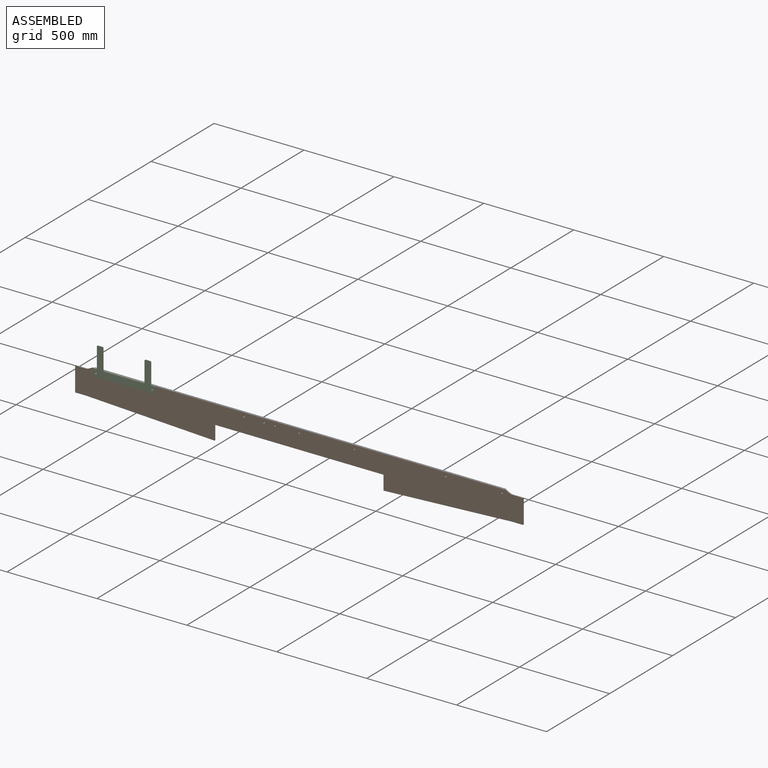
[diagram: assembled view]
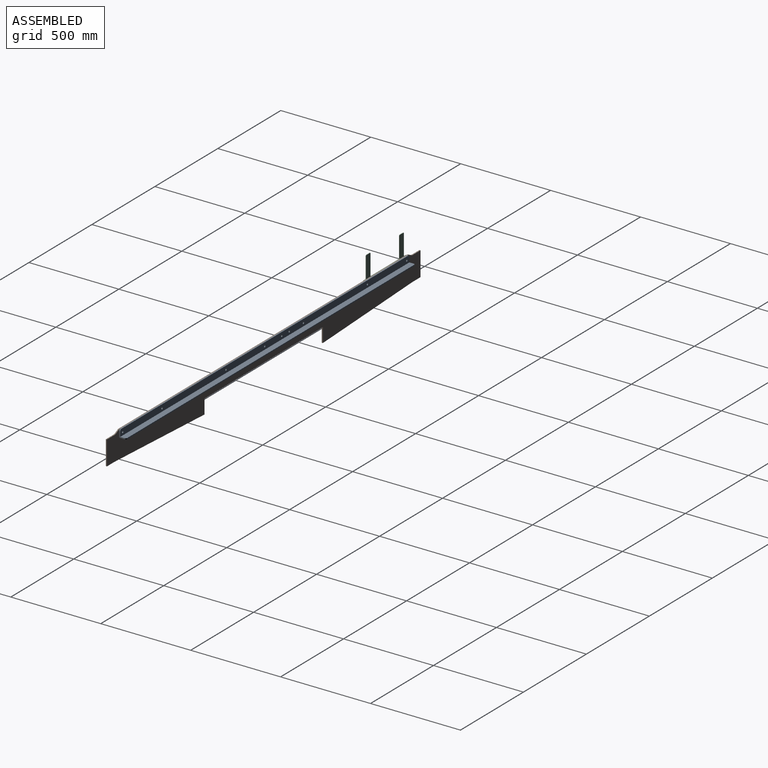
[diagram: assembled view, second angle]
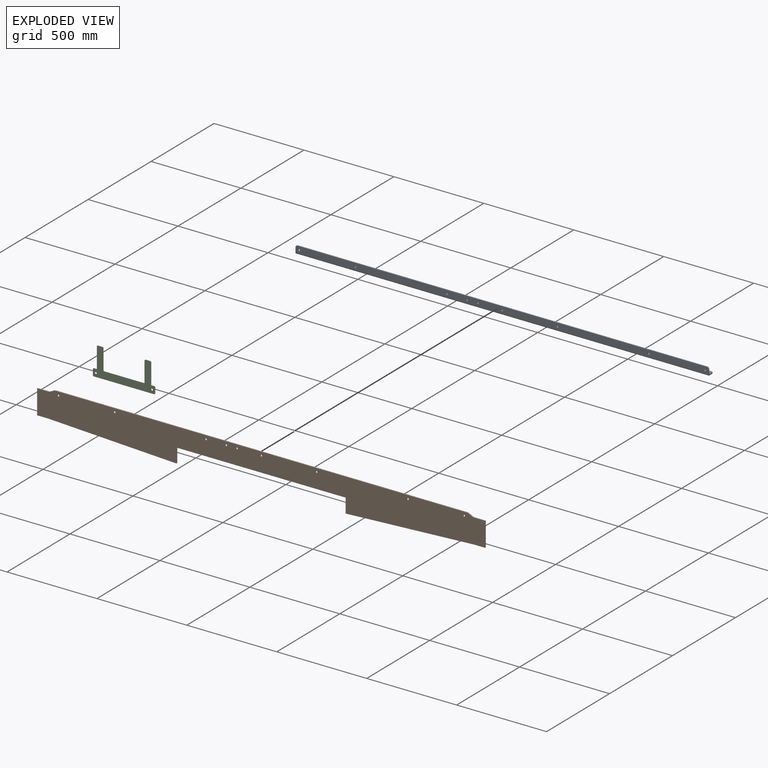
[diagram: exploded view]
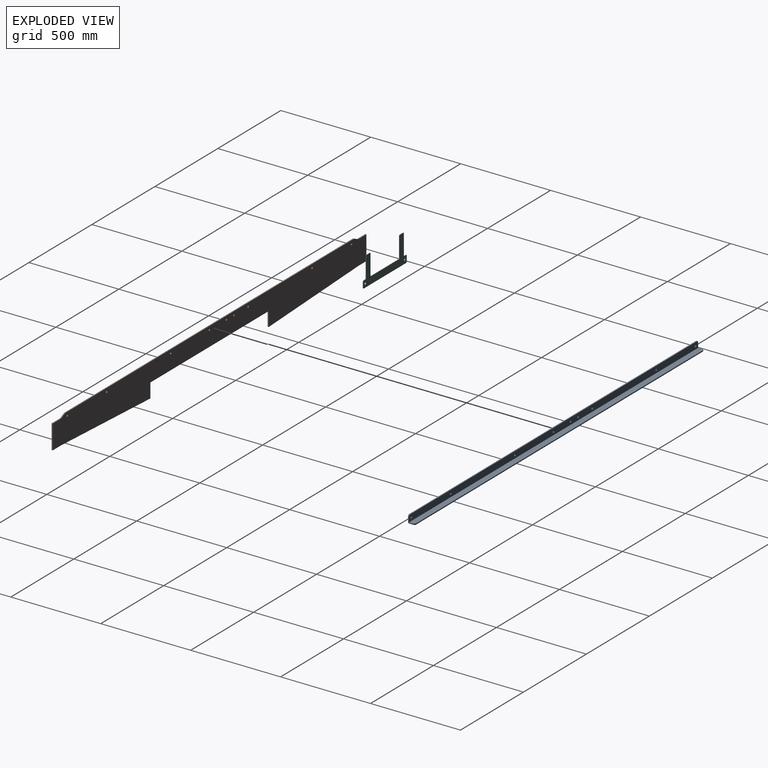
[diagram: exploded view, second angle]
ASSEMBLY  parts=3 mates=2
PART A: 27 faces, bbox 2296x39x43 mm
  f0: plane 26.99x6mm, normal (1,0,0), area 161.9mm2, adj f12,f13,f14,f23
  f1: plane 2276x6mm, normal (0,0,1), area 13656mm2, adj f12,f13,f14,f15
  f2: cylinder r=5.5mm len=11mm, axis (0,-1,0), area 207.3mm2, adj f12,f13
  f3: cylinder r=5.5mm len=11mm, axis (0,-1,0), area 207.3mm2, adj f12,f13
  f4: cylinder r=5.5mm len=11mm, axis (0,-1,0), area 207.3mm2, adj f12,f13
  f5: cylinder r=5.5mm len=11mm, axis (0,-1,0), area 207.3mm2, adj f12,f13
  f6: cylinder r=5.5mm len=11mm, axis (0,-1,0), area 207.3mm2, adj f12,f13
  f7: cylinder r=5.5mm len=11mm, axis (0,-1,0), area 207.3mm2, adj f12,f13
  f8: cylinder r=5.5mm len=11mm, axis (0,-1,0), area 207.3mm2, adj f12,f13
  f9: cylinder r=5.5mm len=11mm, axis (0,-1,0), area 207.3mm2, adj f12,f13
  f10: cylinder r=5.5mm len=11mm, axis (0,-1,0), area 207.3mm2, adj f12,f13
  f11: plane 26.99x6mm, normal (-1,0,0), area 161.9mm2, adj f12,f13,f15,f24
  f12: plane 2296x36.99mm, normal (0,-1,0), area 84030.8mm2, adj f0,f1,f2,f3,f4,f5,f6,f7
  f13: plane 2296x36.99mm, normal (0,1,0), area 84030.8mm2, adj f0,f1,f2,f3,f4,f5,f6,f7
  f14: cylinder r=10mm len=10mm, axis (0,1,0), area 94.2mm2, adj f0,f1,f12,f13
  f15: cylinder r=10mm len=10mm, axis (0,-1,0), area 94.2mm2, adj f1,f11,f12,f13
  f16: plane 2276x6mm, normal (0,-1,0), area 13656mm2, adj f19,f20,f21,f22
  f17: plane 22.99x6mm, normal (1,0,0), area 137.9mm2, adj f19,f20,f22,f23
  f18: plane 22.99x6mm, normal (-1,0,0), area 137.9mm2, adj f19,f20,f21,f24
  f19: plane 2296x32.99mm, normal (0,0,1), area 75702.1mm2, adj f16,f17,f18,f21,f22,f26
  f20: plane 2296x32.99mm, normal (0,0,-1), area 75702.1mm2, adj f16,f17,f18,f21,f22,f25
  f21: cylinder r=10mm len=10mm, axis (0,0,1), area 94.2mm2, adj f16,f18,f19,f20
  f22: cylinder r=10mm len=10mm, axis (0,0,1), area 94.2mm2, adj f16,f17,f19,f20
  f23: plane 6.01x6.01mm, normal (1,0,0), area 28.4mm2, adj f0,f17,f25,f26
  f24: plane 6.01x6.01mm, normal (-1,0,0), area 28.4mm2, adj f11,f18,f25,f26
  f25: cylinder r=6.01mm len=2296mm, axis (1,0,0), area 21675.4mm2, adj f13,f20,f23,f24
  f26: cylinder r=0.01mm len=2296mm, axis (1,0,0), area 36.1mm2, adj f12,f19,f23,f24
PART B: 29 faces, bbox 2490x6x185 mm
  f0: plane 2284.2x6mm, normal (0,0,1), area 13705.2mm2, adj f23,f24,f27,f28
  f1: plane 19.44x9.72mm, normal (-0.45,0,0.89), area 130.4mm2, adj f23,f24,f26,f27
  f2: plane 61.1x6mm, normal (0,0,1), area 366.6mm2, adj f3,f23,f24,f26
  f3: plane 135x6mm, normal (-1,0,0), area 810mm2, adj f2,f4,f23,f24
  f4: plane 63x6mm, normal (0,0,-1), area 378mm2, adj f3,f5,f23,f24
  f5: plane 712x35mm, normal (-0.05,0,-1), area 4277.2mm2, adj f4,f6,f23,f24
  f6: plane 80x6mm, normal (1,0,0), area 480mm2, adj f5,f7,f23,f24
  f7: plane 940x6mm, normal (0,0,-1), area 5640mm2, adj f6,f8,f23,f24
  f8: plane 80x6mm, normal (-1,0,0), area 480mm2, adj f7,f9,f23,f24
  f9: plane 712x35mm, normal (0.05,0,-1), area 4277.2mm2, adj f8,f10,f23,f24
  f10: plane 63x6mm, normal (0,0,-1), area 378mm2, adj f9,f11,f23,f24
  f11: plane 135x6mm, normal (1,0,0), area 810mm2, adj f10,f12,f23,f24
  f12: plane 61.1x6mm, normal (0,0,1), area 366.6mm2, adj f11,f23,f24,f25
  f13: cylinder r=5.5mm len=11mm, axis (0,-1,0), area 207.3mm2, adj f23,f24
  f14: cylinder r=5.5mm len=11mm, axis (0,-1,0), area 207.3mm2, adj f23,f24
  f15: cylinder r=5.5mm len=11mm, axis (0,-1,0), area 207.3mm2, adj f23,f24
  f16: cylinder r=5.5mm len=11mm, axis (0,-1,0), area 207.3mm2, adj f23,f24
  f17: cylinder r=5.5mm len=11mm, axis (0,-1,0), area 207.3mm2, adj f23,f24
  f18: cylinder r=5.5mm len=11mm, axis (0,-1,0), area 207.3mm2, adj f23,f24
  f19: cylinder r=5.5mm len=11mm, axis (0,-1,0), area 207.3mm2, adj f23,f24
  f20: cylinder r=5.5mm len=11mm, axis (0,-1,0), area 207.3mm2, adj f23,f24
  f21: cylinder r=5.5mm len=11mm, axis (0,-1,0), area 207.3mm2, adj f23,f24
  f22: plane 19.44x9.72mm, normal (0.45,0,0.89), area 130.4mm2, adj f23,f24,f25,f28
  f23: plane 2490x185mm, normal (0,-1,0), area 352804.7mm2, adj f0,f1,f2,f3,f4,f5,f6,f7
  f24: plane 2490x185mm, normal (0,1,0), area 352804.7mm2, adj f0,f1,f2,f3,f4,f5,f6,f7
  f25: cylinder r=25mm len=11.18mm, axis (0,1,0), area 69.5mm2, adj f12,f22,f23,f24
  f26: cylinder r=25mm len=11.18mm, axis (0,1,0), area 69.5mm2, adj f1,f2,f23,f24
  f27: cylinder r=25mm len=11.18mm, axis (0,1,0), area 69.5mm2, adj f0,f1,f23,f24
  f28: cylinder r=25mm len=11.18mm, axis (0,1,0), area 69.5mm2, adj f0,f22,f23,f24
PART C: 28 faces, bbox 345x3x160 mm
  f0: plane 110x3mm, normal (1,0,0), area 330mm2, adj f14,f15,f19,f25
  f1: plane 25x3mm, normal (0,0,1), area 75mm2, adj f14,f15,f25,f26
  f2: plane 110x3mm, normal (-1,0,0), area 330mm2, adj f14,f15,f26,f27
  f3: plane 220x3mm, normal (0,0,1), area 660mm2, adj f14,f15,f22,f27
  f4: plane 110x3mm, normal (1,0,0), area 330mm2, adj f14,f15,f21,f22
  f5: plane 25x3mm, normal (0,0,1), area 75mm2, adj f14,f15,f21,f24
  f6: plane 110x3mm, normal (-1,0,0), area 330mm2, adj f14,f15,f20,f24
  f7: plane 12.5x3mm, normal (0,0,1), area 37.5mm2, adj f14,f15,f17,f20
  f8: plane 30x3mm, normal (-1,0,0), area 90mm2, adj f14,f15,f17,f18
  f9: plane 335x3mm, normal (0,0,-1), area 1005mm2, adj f14,f15,f18,f23
  f10: plane 30x3mm, normal (1,0,0), area 90mm2, adj f14,f15,f16,f23
  f11: cylinder r=5.5mm len=11mm, axis (0,-1,0), area 103.7mm2, adj f14,f15
  f12: cylinder r=5.5mm len=11mm, axis (0,-1,0), area 103.7mm2, adj f14,f15
  f13: plane 12.5x3mm, normal (0,0,1), area 37.5mm2, adj f14,f15,f16,f19
  f14: plane 345x160mm, normal (0,-1,0), area 21988.5mm2, adj f0,f1,f2,f3,f4,f5,f6,f7
  f15: plane 345x160mm, normal (0,1,0), area 21988.5mm2, adj f0,f1,f2,f3,f4,f5,f6,f7
  f16: cylinder r=5mm len=5mm, axis (0,-1,0), area 23.6mm2, adj f10,f13,f14,f15
  f17: cylinder r=5mm len=5mm, axis (0,1,0), area 23.6mm2, adj f7,f8,f14,f15
  f18: cylinder r=5mm len=5mm, axis (0,1,0), area 23.6mm2, adj f8,f9,f14,f15
  f19: cylinder r=5mm len=5mm, axis (0,1,0), area 23.6mm2, adj f0,f13,f14,f15
  f20: cylinder r=5mm len=5mm, axis (0,1,0), area 23.6mm2, adj f6,f7,f14,f15
  f21: cylinder r=5mm len=5mm, axis (0,1,0), area 23.6mm2, adj f4,f5,f14,f15
  f22: cylinder r=5mm len=5mm, axis (0,1,0), area 23.6mm2, adj f3,f4,f14,f15
  f23: cylinder r=5mm len=5mm, axis (0,-1,0), area 23.6mm2, adj f9,f10,f14,f15
  f24: cylinder r=5mm len=5mm, axis (0,1,0), area 23.6mm2, adj f5,f6,f14,f15
  f25: cylinder r=5mm len=5mm, axis (0,1,0), area 23.6mm2, adj f0,f1,f14,f15
  f26: cylinder r=5mm len=5mm, axis (0,1,0), area 23.6mm2, adj f1,f2,f14,f15
  f27: cylinder r=5mm len=5mm, axis (0,1,0), area 23.6mm2, adj f2,f3,f14,f15
PLACE A rot(axis=(0,0,1),180deg) t=(1126.85,140.96,-237.13)mm
PLACE B t=(-1266.15,140.96,-385.13)mm
PLACE C rot(axis=(0,0,1),180deg) t=(-820.4,131.96,-240.13)mm
MATE fastened C.f11 <-> B.f21  axis (0,1,0) through (-1149.15,134.96,-220.13)mm
MATE fastened A.f3 <-> B.f13  axis (0,-1,0) through (-156.15,140.96,-220.13)mm
